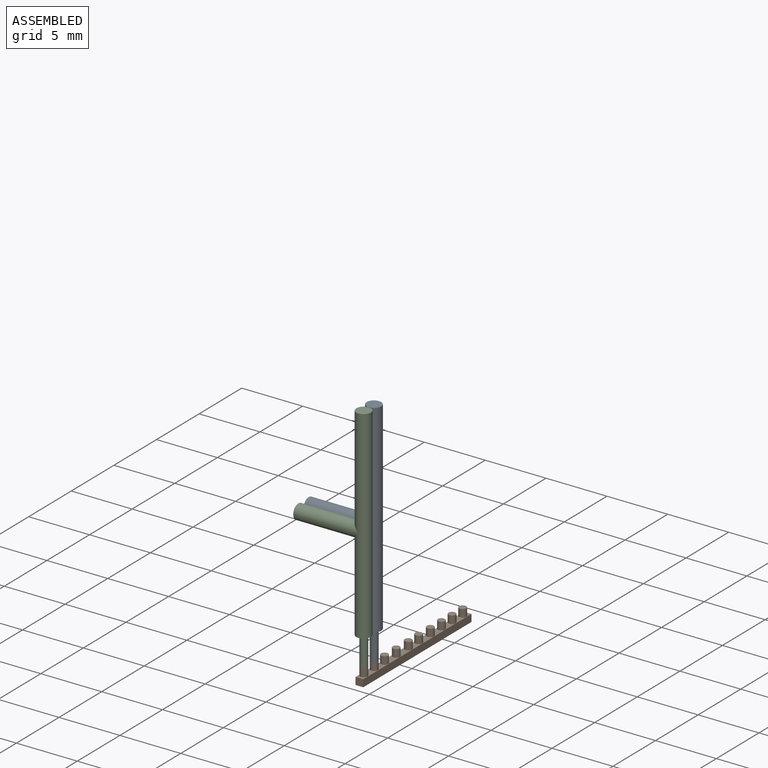
[diagram: assembled view]
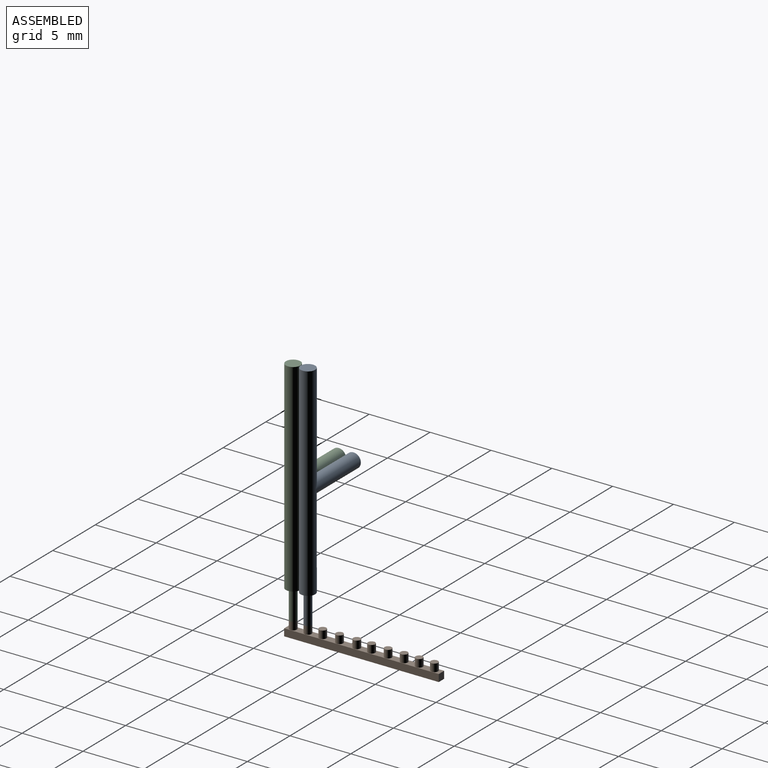
[diagram: assembled view, second angle]
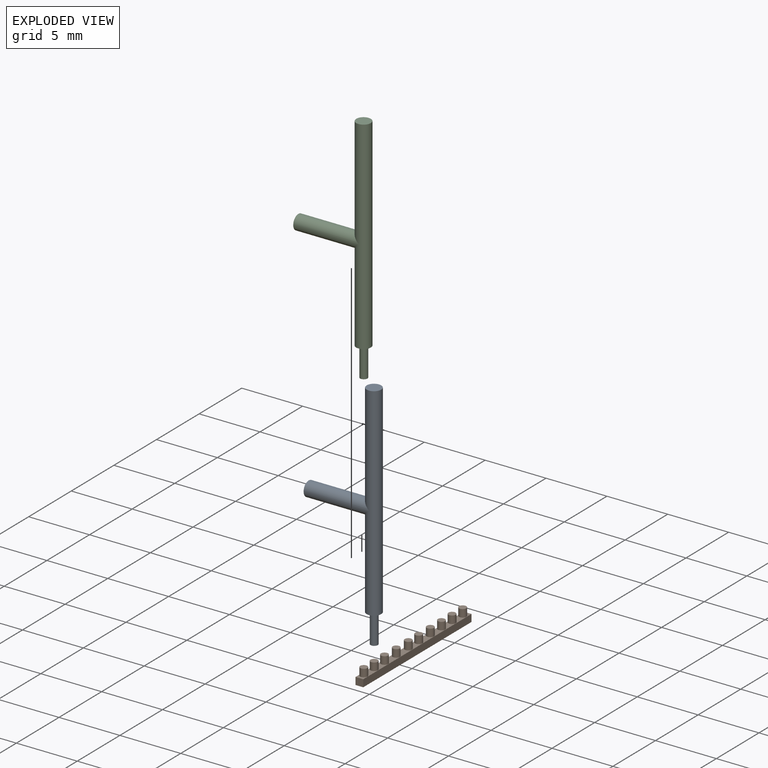
[diagram: exploded view]
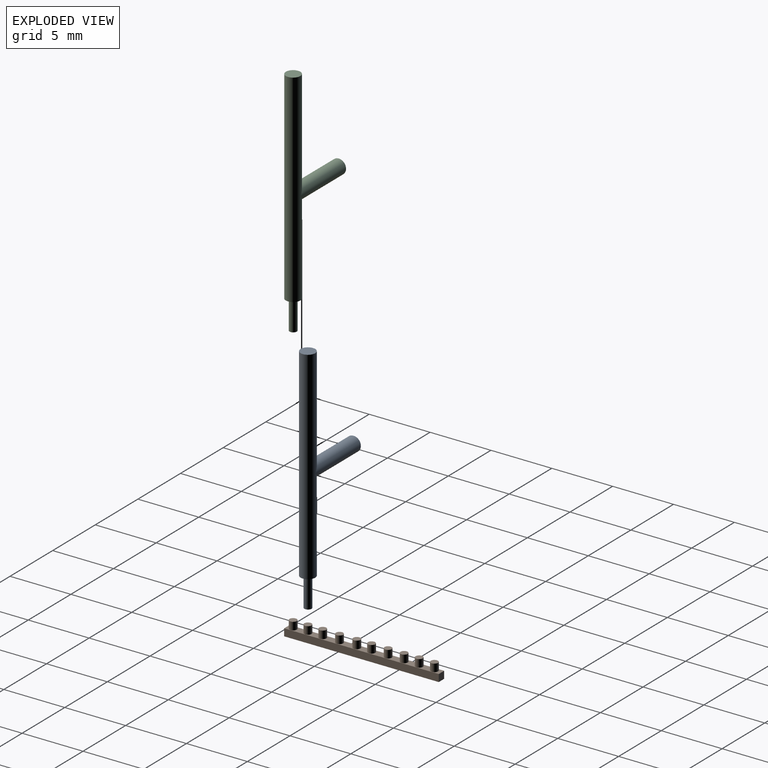
[diagram: exploded view, second angle]
ASSEMBLY  parts=3 mates=2
PART A: 22 faces, bbox 6x1.2x19.1 mm
  f0: plane 1.19x1.19mm, normal (0,0,-1), area 0.8mm2, adj f1,f7,f8,f9,f10,f14,f15,f19
  f1: plane 16.67x0.02mm, normal (1,0,0), area 0.4mm2, adj f0,f2,f14,f19
  f2: plane 1.19x1.19mm, normal (0,0,1), area 1.1mm2, adj f1,f3,f8,f9,f12,f14,f17,f19
  f3: plane 8.33x0.02mm, normal (-1,0,0), area 0.2mm2, adj f2,f4,f12,f17
  f4: plane 4.76x0.02mm, normal (0,0,1), area 0.1mm2, adj f3,f5,f13,f18
  f5: plane 1.19x1.19mm, normal (-1,0,0), area 1.1mm2, adj f4,f6,f8,f9,f11,f13,f16,f18
  f6: plane 4.76x0.02mm, normal (0,0,-1), area 0.1mm2, adj f5,f7,f11,f16
  f7: plane 7.14x0.02mm, normal (-1,0,0), area 0.2mm2, adj f0,f6,f10,f15
  f8: plane 16.67x5.37mm, normal (0,-1,0), area 0.5mm2, adj f0,f2,f5,f15,f16,f17,f18,f19
  f9: plane 16.67x5.37mm, normal (0,1,0), area 0.5mm2, adj f0,f2,f5,f10,f11,f12,f13,f14
  f10: cylinder r=0.58mm len=7.73mm, axis (0,0,-1), area 6.8mm2, adj f0,f7,f9,f11
  f11: cylinder r=0.58mm len=5.35mm, axis (1,0,0), area 4.6mm2, adj f5,f6,f9,f10
  f12: cylinder r=0.58mm len=8.92mm, axis (0,0,-1), area 7.8mm2, adj f2,f3,f9,f13
  f13: cylinder r=0.58mm len=5.35mm, axis (-1,0,0), area 4.6mm2, adj f4,f5,f9,f12
  f14: cylinder r=0.58mm len=16.67mm, axis (0,0,1), area 15.3mm2, adj f0,f1,f2,f9
  f15: cylinder r=0.58mm len=7.73mm, axis (0,0,1), area 6.8mm2, adj f0,f7,f8,f16
  f16: cylinder r=0.58mm len=5.35mm, axis (-1,0,0), area 4.6mm2, adj f5,f6,f8,f15
  f17: cylinder r=0.58mm len=8.92mm, axis (0,0,1), area 7.8mm2, adj f2,f3,f8,f18
  f18: cylinder r=0.58mm len=5.35mm, axis (1,0,0), area 4.6mm2, adj f4,f5,f8,f17
  f19: cylinder r=0.58mm len=16.67mm, axis (0,0,-1), area 15.3mm2, adj f0,f1,f2,f8
  f20: cylinder r=0.3mm len=2.38mm, axis (0,0,1), area 4.5mm2, adj f0,f21
  f21: plane 0.6x0.6mm, normal (0,0,-1), area 0.3mm2, adj f20
PART B: 26 faces, bbox 12.7x1.2x0.6 mm
  f0: plane 12.7x0.6mm, normal (0,0,-1), area 7.6mm2, adj f1,f3,f4,f5
  f1: plane 0.64x0.6mm, normal (1,0,0), area 0.4mm2, adj f0,f2,f4,f5
  f2: plane 12.7x0.6mm, normal (0,0,1), area 7.6mm2, adj f1,f3,f4,f5
  f3: plane 0.64x0.6mm, normal (-1,0,0), area 0.4mm2, adj f0,f2,f4,f5
  f4: plane 12.7x0.64mm, normal (0,-1,0), area 5.3mm2, adj f0,f1,f2,f3,f6,f8,f10,f12
  f5: plane 12.7x0.64mm, normal (0,1,0), area 8.1mm2, adj f0,f1,f2,f3
  f6: cylinder r=0.3mm len=0.64mm, axis (0,1,0), area 1.2mm2, adj f4,f7
  f7: plane 0.6x0.6mm, normal (0,-1,0), area 0.3mm2, adj f6
  f8: cylinder r=0.3mm len=0.64mm, axis (0,1,0), area 1.2mm2, adj f4,f9
  f9: plane 0.6x0.6mm, normal (0,-1,0), area 0.3mm2, adj f8
  f10: cylinder r=0.3mm len=0.64mm, axis (0,1,0), area 1.2mm2, adj f4,f11
  f11: plane 0.6x0.6mm, normal (0,-1,0), area 0.3mm2, adj f10
  f12: cylinder r=0.3mm len=0.64mm, axis (0,1,0), area 1.2mm2, adj f4,f13
  f13: plane 0.6x0.6mm, normal (0,-1,0), area 0.3mm2, adj f12
  f14: cylinder r=0.3mm len=0.64mm, axis (0,1,0), area 1.2mm2, adj f4,f15
  f15: plane 0.6x0.6mm, normal (0,-1,0), area 0.3mm2, adj f14
  f16: cylinder r=0.3mm len=0.64mm, axis (0,1,0), area 1.2mm2, adj f4,f17
  f17: plane 0.6x0.6mm, normal (0,-1,0), area 0.3mm2, adj f16
  f18: cylinder r=0.3mm len=0.64mm, axis (0,1,0), area 1.2mm2, adj f4,f19
  f19: plane 0.6x0.6mm, normal (0,-1,0), area 0.3mm2, adj f18
  f20: cylinder r=0.3mm len=0.64mm, axis (0,1,0), area 1.2mm2, adj f4,f21
  f21: plane 0.6x0.6mm, normal (0,-1,0), area 0.3mm2, adj f20
  f22: cylinder r=0.3mm len=0.64mm, axis (0,1,0), area 1.2mm2, adj f4,f23
  f23: plane 0.6x0.6mm, normal (0,-1,0), area 0.3mm2, adj f22
  f24: cylinder r=0.3mm len=0.64mm, axis (0,1,0), area 1.2mm2, adj f4,f25
  f25: plane 0.6x0.6mm, normal (0,-1,0), area 0.3mm2, adj f24
PART C: same geometry as A
PLACE A t=(-1.56,12.06,3.43)mm
PLACE B rot(axis=(-0.58,-0.58,0.58),120deg) t=(-1.83,22.45,-0.18)mm
PLACE C t=(-1.56,10.85,3.43)mm
MATE fastened B.f22 <-> A.f14  axis (0,0,1) through (-2.15,11.48,1.05)mm
MATE revolute B.f24 <-> C.f14  axis (0,0,1) through (-2.15,10.26,1.05)mm
